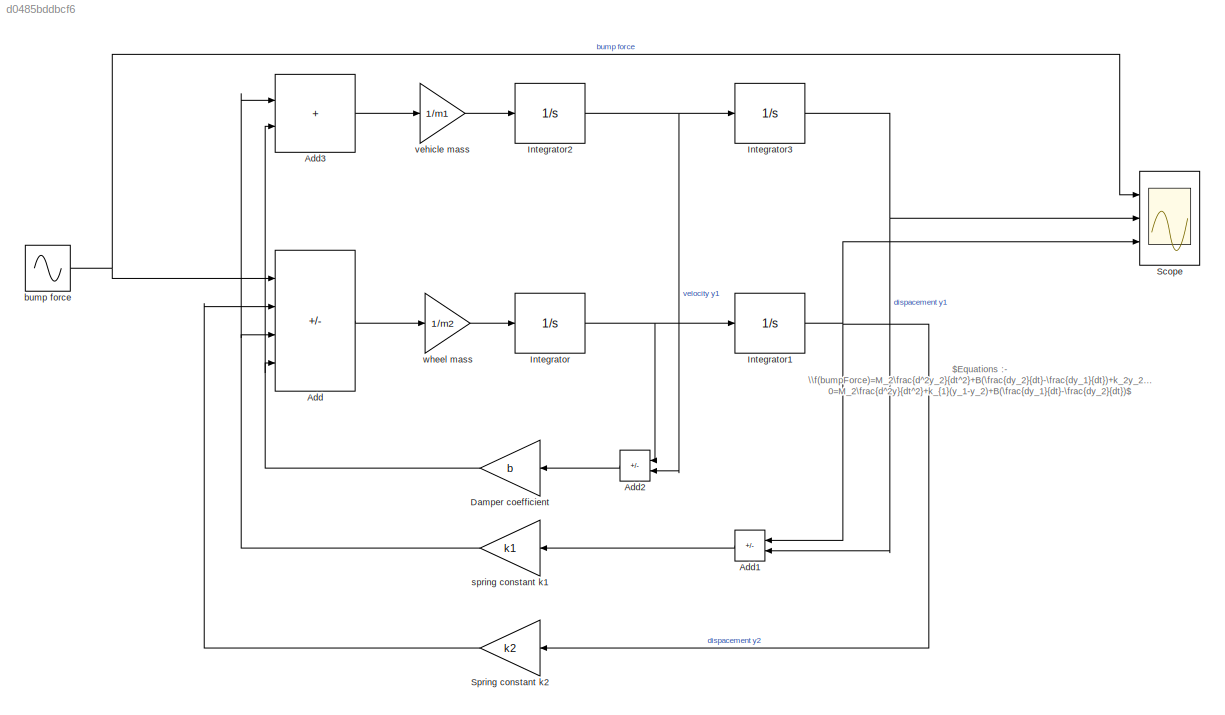
MODEL slx_d0485bddbcf6
KIND model
CONFIG AbsTol = auto
CONFIG EnableMultiTasking = off
CONFIG FixedStep = auto
CONFIG MaxStep = auto
CONFIG MinStep = auto
CONFIG RelTol = 1e-3
CONFIG SampleTimeConstraint = Unconstrained
CONFIG SolverName = VariableStepAuto
CONFIG StartTime = 0.0
CONFIG StopTime = 10.0
WORKSPACE source: mxarray member
WORKSPACE b = 9000
WORKSPACE k1 = 12000
WORKSPACE k2 = 10000
WORKSPACE m1 = 1000
WORKSPACE m2 = 100
BLOCK [Sum] Add
  IconShape = rectangular
  Inputs = +---
  Ports = [4, 1]
BLOCK [Sum] Add1
  IconShape = rectangular
  Inputs = +-
  NameLocation = top
  Ports = [2, 1]
BLOCK [Sum] Add2
  IconShape = rectangular
  Inputs = +-
  NameLocation = top
  Ports = [2, 1]
BLOCK [Sum] Add3
  IconShape = rectangular
  Ports = [2, 1]
BLOCK [Gain] Damper coefficient
  Gain = b
  NameLocation = top
BLOCK [Integrator] Integrator
  Ports = [1, 1]
BLOCK [Integrator] Integrator1
  Ports = [1, 1]
BLOCK [Integrator] Integrator2
  Ports = [1, 1]
BLOCK [Integrator] Integrator3
  Ports = [1, 1]
BLOCK [Scope] Scope
  Floating = off
  NumInputPorts = 3
  Ports = [3]
  ScopeSpecificationString = Simulink.scopes.TimeScopeBlockCfg('CurrentConfiguration', extmgr.ConfigurationSet(extmgr.Configuration('Core','General UI',true),extmgr.Configuration('Core','Source UI',true),extmgr.Configuration('Sources','WiredSimulink',true),extmgr.Configuration('Visuals','Time Domain',true,'SerializedDisplays',{struct('MinYLimReal','-124.99941','MaxYLimReal','1124.99468','YLabelReal','','MinYLimMag',' 0.00000'...<+2768ch>
BLOCK [Gain] Spring constant k2
  Gain = k2
  NameLocation = top
BLOCK [Sin] bump force
  Amplitude = 1000
  Frequency = 0.25
  Ports = [0, 1]
  SampleTime = 0
BLOCK [Gain] spring constant k1
  Gain = k1
  NameLocation = top
BLOCK [Gain] vehicle mass
  Gain = 1/m1
BLOCK [Gain] wheel mass
  Gain = 1/m2
ANNOTATION (root): $Equations :- \\f(bumpForce)=M_2\frac{d^2y_2}{dt^2}+B(\frac{dy_2}{dt}-\frac{dy_1}{dt})+k_2y_2+k_{1}(y_2-y_1) \\ 0=M_2\frac{d^2y}{dt^2}+k_{1}(y_1-y_2)+B(\frac{dy_1}{dt}-\frac{dy_2}{dt})$
LINE Add1:1 -> spring constant k1:1
LINE Add2:1 -> Damper coefficient:1
LINE Add3:1 -> vehicle mass:1
LINE Add:1 -> wheel mass:1
NET Damper coefficient:1 -> Add3:2, Add:4
NET Integrator1:1 -> Add1:1, Scope:3, Spring constant k2:1
NET Integrator2:1 -> Add2:2, Integrator3:1
NET Integrator3:1 -> Add1:2, Scope:2
NET Integrator:1 -> Add2:1, Integrator1:1
LINE Spring constant k2:1 -> Add:2
NET bump force:1 -> Add:1, Scope:1
NET spring constant k1:1 -> Add3:1, Add:3
LINE vehicle mass:1 -> Integrator2:1
LINE wheel mass:1 -> Integrator:1
note: NET lines group one-source signal fan-out (src -> all destinations, sorted); 1:1 wires keep LINE
